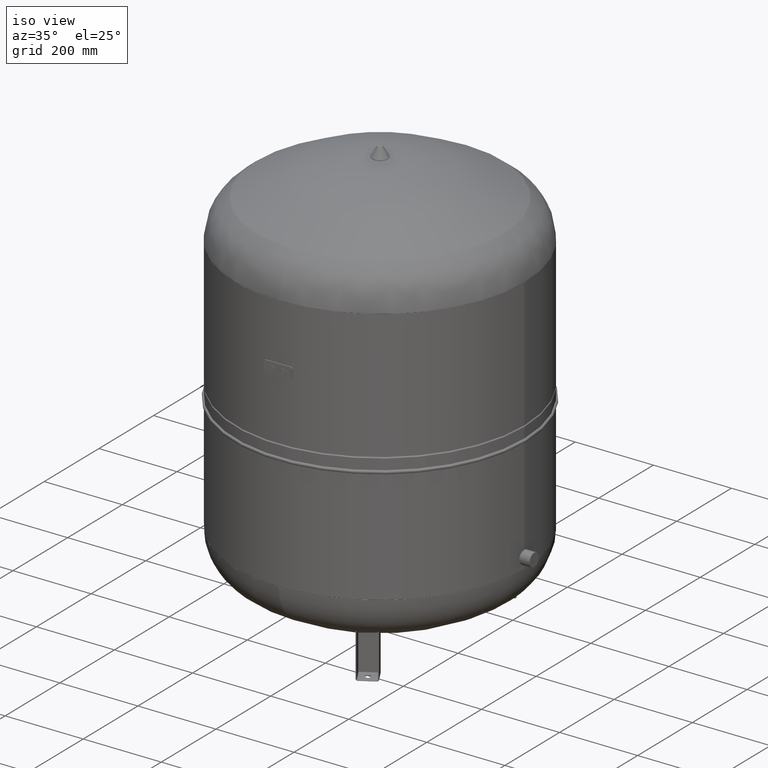
[diagram: clean part render]
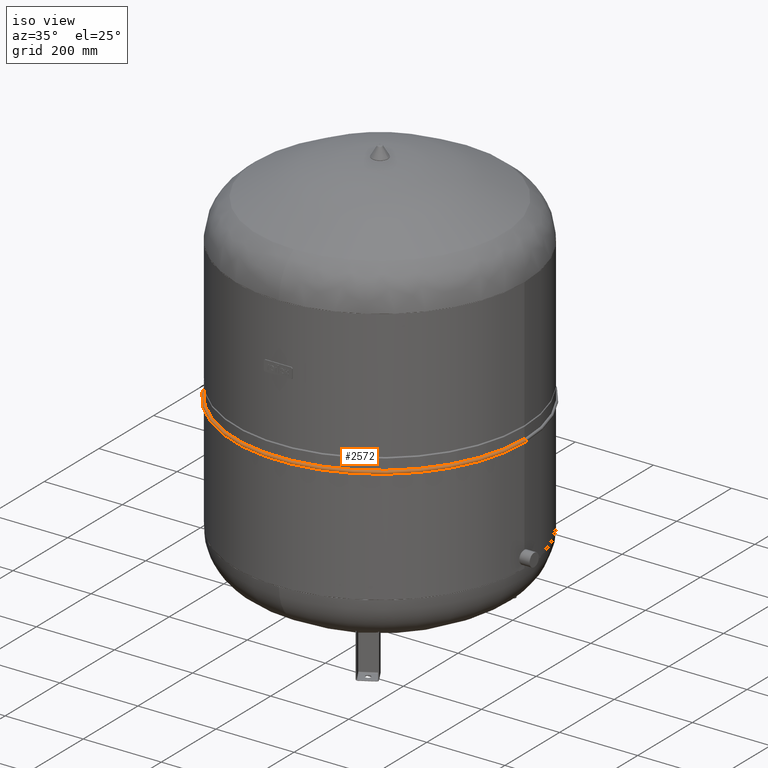
[diagram: same view with one face highlighted and labeled with its STEP entity id]
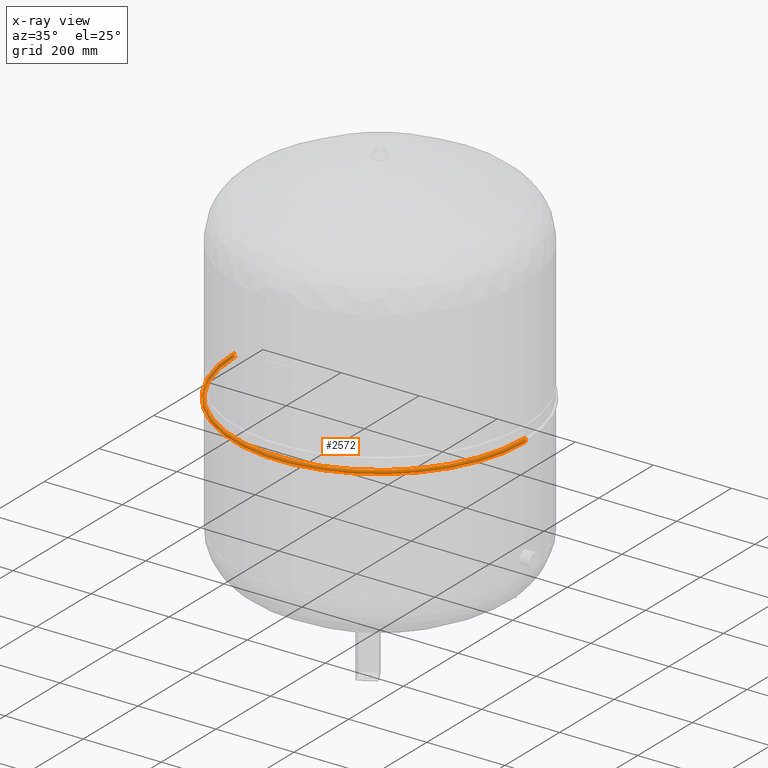
[diagram: x-ray of the same camera — body ghosted, the highlighted face saturated]
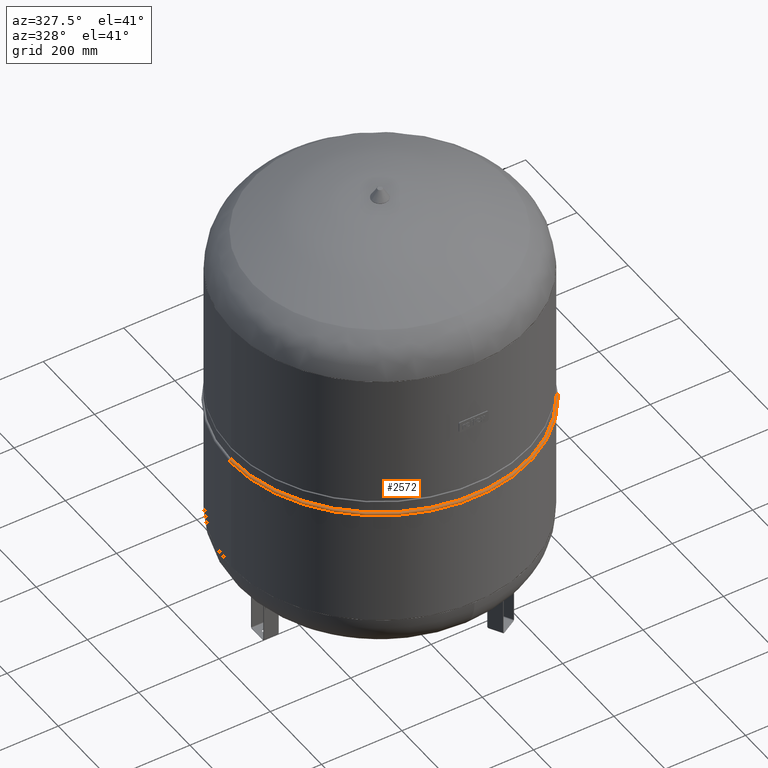
[diagram: same view with one face highlighted and labeled with its STEP entity id]
A machine part, iso view. The second image highlights one B-rep face of the part: STEP entity #2572.
The next image is the same camera in x-ray: the body ghosted, the highlighted face saturated — about 9% of this face is hidden behind the body in this view.
A second angle (auxiliary view) of the same face is appended — the face is thin or edge-on in the first view.
In plain terms, the highlighted toroidal blend (fillet) surface has major radius 370 mm and minor (blend) radius 4.4 mm.
Its self-contained STEP definition (entity closure, byte-faithful):
#2512=CARTESIAN_POINT('',(369.999999999999720,0.0,519.399999999999980));
#2513=VERTEX_POINT('',#2512);
#2521=CARTESIAN_POINT('',(-369.999999999999720,-4.531044E-014,519.400000000000090));
#2522=VERTEX_POINT('',#2521);
#2529=CARTESIAN_POINT('',(-1.542754E-015,0.0,519.399999999999980));
#2530=DIRECTION('',(0.0,0.0,1.0));
#2531=DIRECTION('',(1.0,0.0,0.0));
#2532=AXIS2_PLACEMENT_3D('',#2529,#2530,#2531);
#2533=CIRCLE('',#2532,369.999999999999720);
#2534=EDGE_CURVE('',#2522,#2513,#2533,.T.);
#2539=CARTESIAN_POINT('',(0.0,0.0,515.0));
#2540=DIRECTION('',(5.041681E-017,0.0,1.0));
#2541=DIRECTION('',(1.0,0.0,0.0));
#2542=AXIS2_PLACEMENT_3D('',#2539,#2540,#2541);
#2543=TOROIDAL_SURFACE('',#2542,369.999999999999720,4.400000000000000);
#2544=CARTESIAN_POINT('',(369.999999999999720,0.0,510.600000000000020));
#2545=VERTEX_POINT('',#2544);
#2546=CARTESIAN_POINT('',(369.999999999999720,0.0,515.0));
#2547=DIRECTION('',(0.0,1.0,0.0));
#2548=DIRECTION('',(1.0,0.0,0.0));
#2549=AXIS2_PLACEMENT_3D('',#2546,#2547,#2548);
#2550=CIRCLE('',#2549,4.400000000000000);
#2551=EDGE_CURVE('',#2513,#2545,#2550,.T.);
#2552=ORIENTED_EDGE('',*,*,#2551,.F.);
#2553=ORIENTED_EDGE('',*,*,#2534,.F.);
#2554=CARTESIAN_POINT('',(-369.999999999999890,-4.531044E-014,510.600000000000020));
#2555=VERTEX_POINT('',#2554);
#2556=CARTESIAN_POINT('',(-369.999999999999720,-4.531044E-014,515.0));
#2557=DIRECTION('',(0.0,-1.0,0.0));
#2558=DIRECTION('',(-1.0,0.0,0.0));
#2559=AXIS2_PLACEMENT_3D('',#2556,#2557,#2558);
#2560=CIRCLE('',#2559,4.400000000000000);
#2561=EDGE_CURVE('',#2522,#2555,#2560,.T.);
#2562=ORIENTED_EDGE('',*,*,#2561,.T.);
#2563=CARTESIAN_POINT('',(-1.986422E-015,0.0,510.600000000000020));
#2564=DIRECTION('',(0.0,0.0,1.0));
#2565=DIRECTION('',(1.0,0.0,0.0));
#2566=AXIS2_PLACEMENT_3D('',#2563,#2564,#2565);
#2567=CIRCLE('',#2566,369.999999999999720);
#2568=EDGE_CURVE('',#2555,#2545,#2567,.T.);
#2569=ORIENTED_EDGE('',*,*,#2568,.T.);
#2570=EDGE_LOOP('',(#2552,#2553,#2562,#2569));
#2571=FACE_OUTER_BOUND('',#2570,.T.);
#2572=ADVANCED_FACE('',(#2571),#2543,.T.);